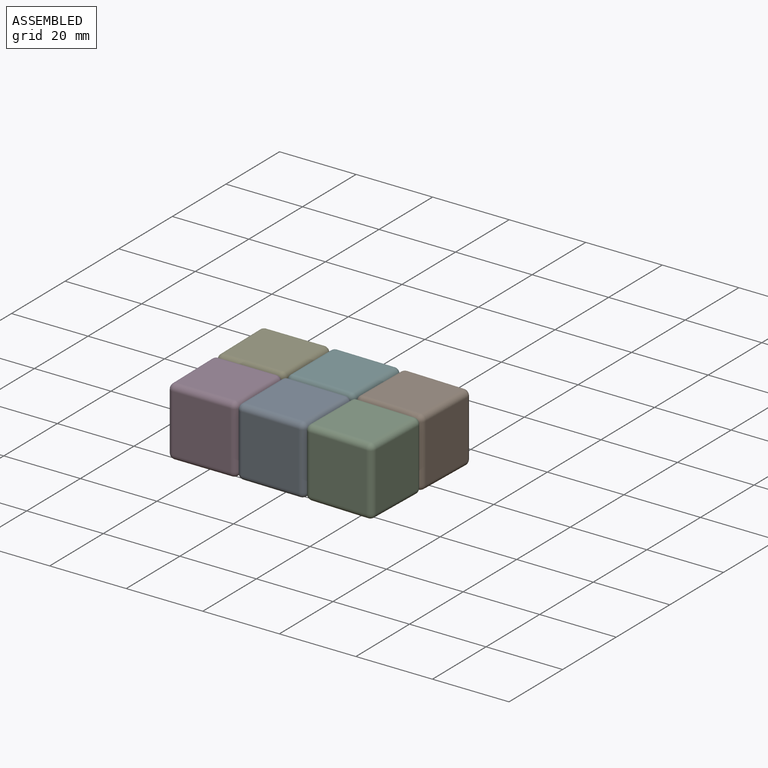
[diagram: assembled view]
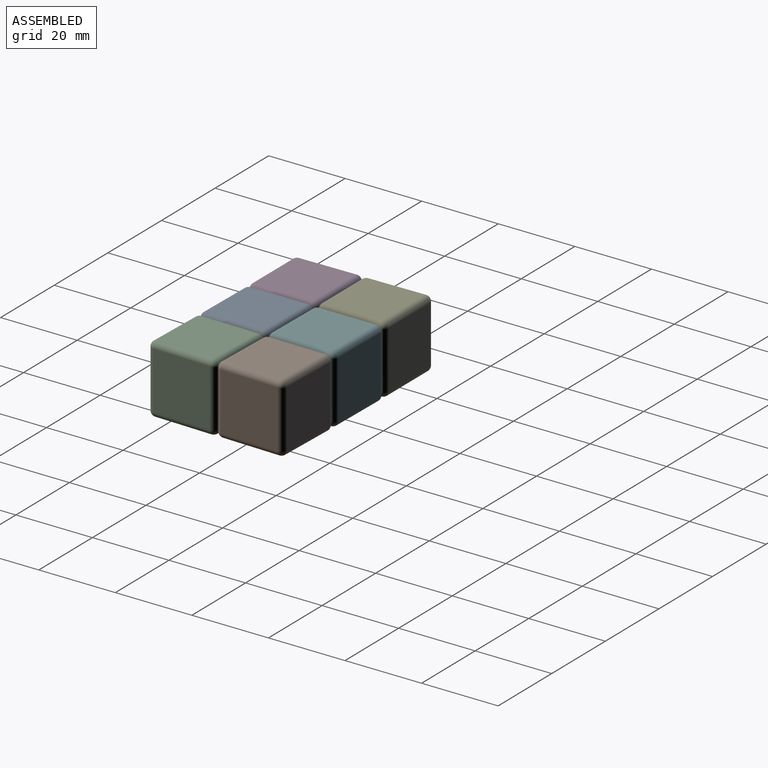
[diagram: assembled view, second angle]
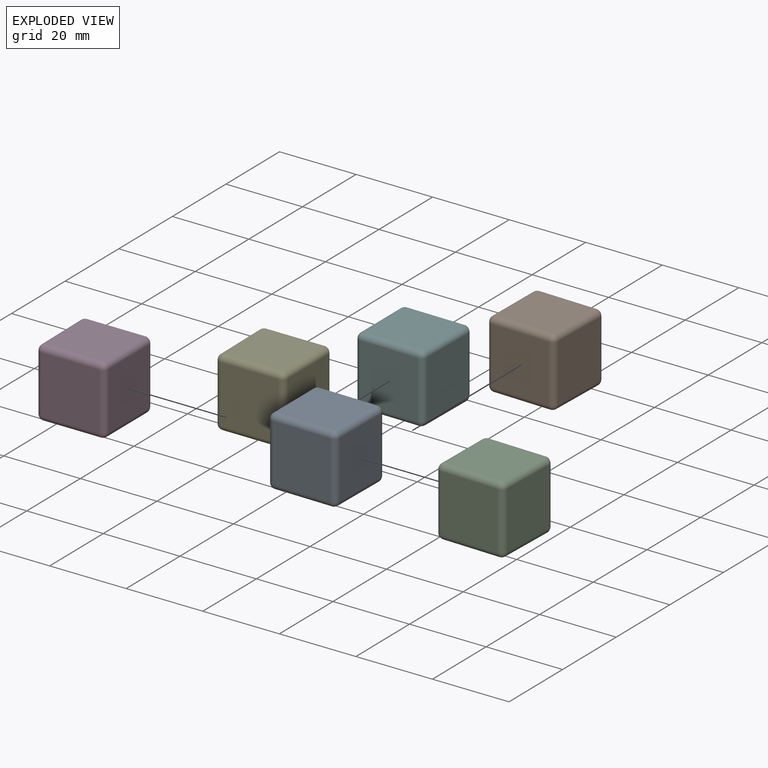
[diagram: exploded view]
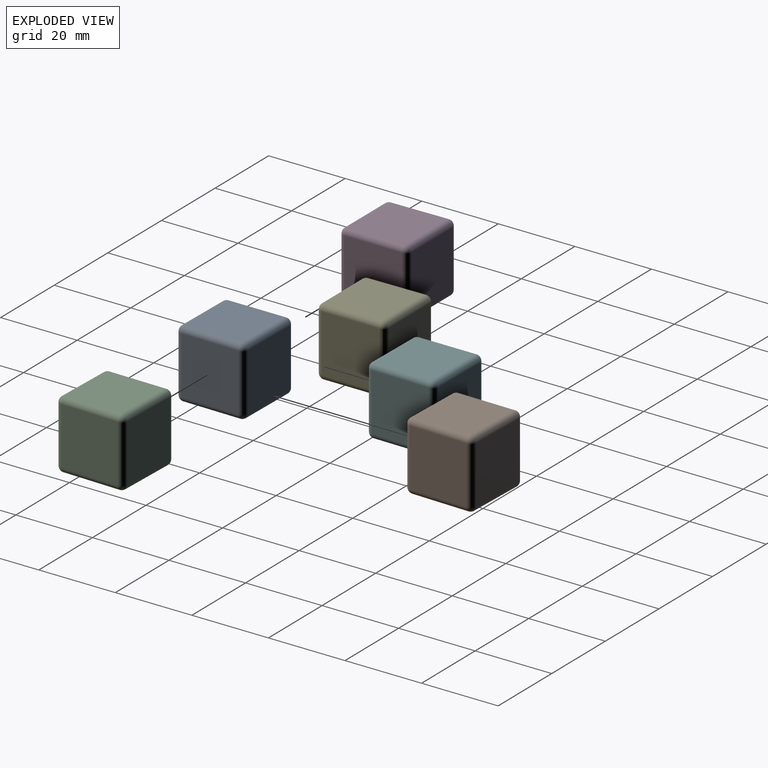
[diagram: exploded view, second angle]
ASSEMBLY  parts=6 mates=5
PART A: 26 faces, bbox 18.2x18x18 mm
  f0: plane 15x15mm, normal (-1,-0.01,0), area 225mm2, adj f14,f19,f22,f25
  f1: plane 15.02x15mm, normal (0,-1,0), area 225.3mm2, adj f11,f20,f21,f25
  f2: plane 15x15mm, normal (1,0,0), area 225mm2, adj f6,f10,f11,f12
  f3: plane 15.23x15mm, normal (0,1,0), area 228.5mm2, adj f6,f9,f13,f14
  f4: plane 15.23x15mm, normal (0,0,1), area 226.9mm2, adj f9,f10,f19,f20
  f5: plane 15.23x15mm, normal (0,0,-1), area 226.9mm2, adj f12,f13,f21,f22
  f6: cylinder r=1.5mm len=15mm, axis (0,0,-1), area 35.3mm2, adj f2,f3,f7,f8
  f7: sphere r=1.5mm, area 3.5mm2, adj f6,f9,f10
  f8: sphere r=1.5mm, area 3.5mm2, adj f6,f12,f13
  f9: cylinder r=1.5mm len=15.23mm, axis (1,0,0), area 35.9mm2, adj f3,f4,f7,f15
  f10: cylinder r=1.5mm len=15mm, axis (0,-1,0), area 35.3mm2, adj f2,f4,f7,f16
  f11: cylinder r=1.5mm len=15mm, axis (0,0,-1), area 35.3mm2, adj f1,f2,f16,f17
  f12: cylinder r=1.5mm len=15mm, axis (0,1,0), area 35.3mm2, adj f2,f5,f8,f17
  f13: cylinder r=1.5mm len=15.23mm, axis (-1,0,0), area 35.9mm2, adj f3,f5,f8,f18
  f14: cylinder r=1.5mm len=15mm, axis (0,0,-1), area 35.7mm2, adj f0,f3,f15,f18
  f15: sphere r=1.5mm, area 3.6mm2, adj f9,f14,f19
  f16: sphere r=1.5mm, area 3.5mm2, adj f10,f11,f20
  f17: sphere r=1.5mm, area 3.5mm2, adj f11,f12,f21
  f18: sphere r=1.5mm, area 3.6mm2, adj f13,f14,f22
  f19: cylinder r=1.5mm len=15.02mm, axis (-0.01,1,0), area 35.3mm2, adj f0,f4,f15,f23
  f20: cylinder r=1.5mm len=15.02mm, axis (-1,0,0), area 35.4mm2, adj f1,f4,f16,f23
  f21: cylinder r=1.5mm len=15.02mm, axis (1,0,0), area 35.4mm2, adj f1,f5,f17,f24
  f22: cylinder r=1.5mm len=15.02mm, axis (0.01,-1,0), area 35.3mm2, adj f0,f5,f18,f24
  f23: sphere r=1.5mm, area 3.5mm2, adj f19,f20,f25
  f24: sphere r=1.5mm, area 3.5mm2, adj f21,f22,f25
  f25: cylinder r=1.5mm len=15mm, axis (0,0,-1), area 35mm2, adj f0,f1,f23,f24
PART B: same geometry as A
PART C: same geometry as A
PART D: same geometry as A
PART E: same geometry as A
PART F: same geometry as A
PLACE A rot(axis=(0,0,-1),0.8deg) t=(-32.73,34.42,8)mm
PLACE B rot(axis=(0,0,-1),1.6deg) t=(-14.09,51.92,8)mm
PLACE C rot(axis=(0,0,-1),1.6deg) t=(-14.49,33.93,8)mm
PLACE D t=(-50.99,34.65,8)mm
PLACE E t=(-51.09,52.65,8)mm
PLACE F rot(axis=(0,0,-1),0.8deg) t=(-32.59,52.42,8)mm
MATE fastened C.f0 <-> A.f2  axis (-1,0.01,0) through (-32.86,25.42,17)mm
MATE fastened B.f1 <-> C.f3  axis (-0.03,-1,0) through (-23.6,34.18,17)mm
MATE fastened F.f1 <-> A.f3  axis (-0.01,-1,0) through (-41.85,34.55,17)mm
MATE fastened D.f2 <-> A.f0  axis (1,0,0) through (-50.99,25.65,17)mm
MATE fastened D.f3 <-> E.f1  axis (0,1,0) through (-60.1,34.65,17)mm
